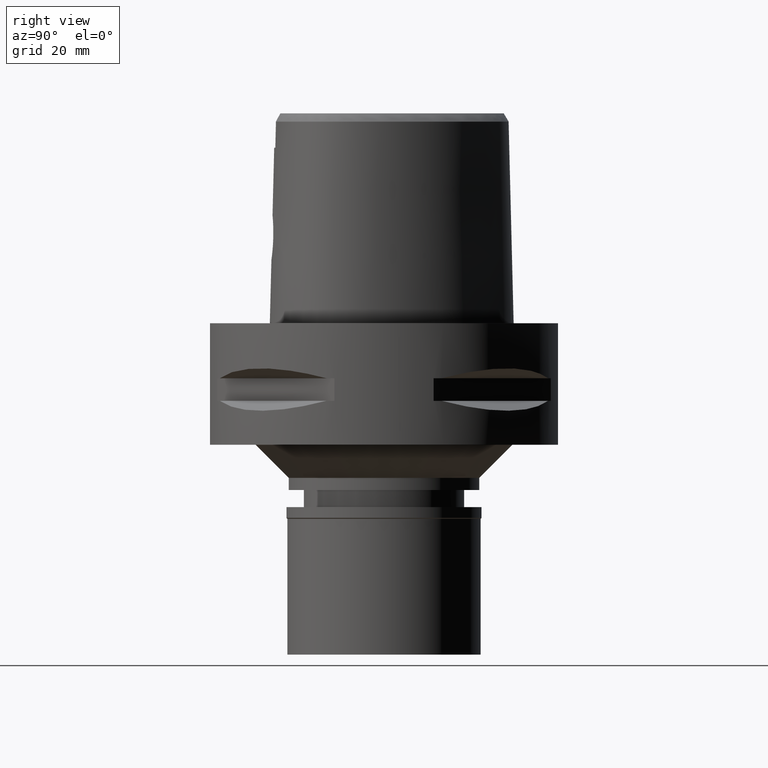
[diagram: clean part render]
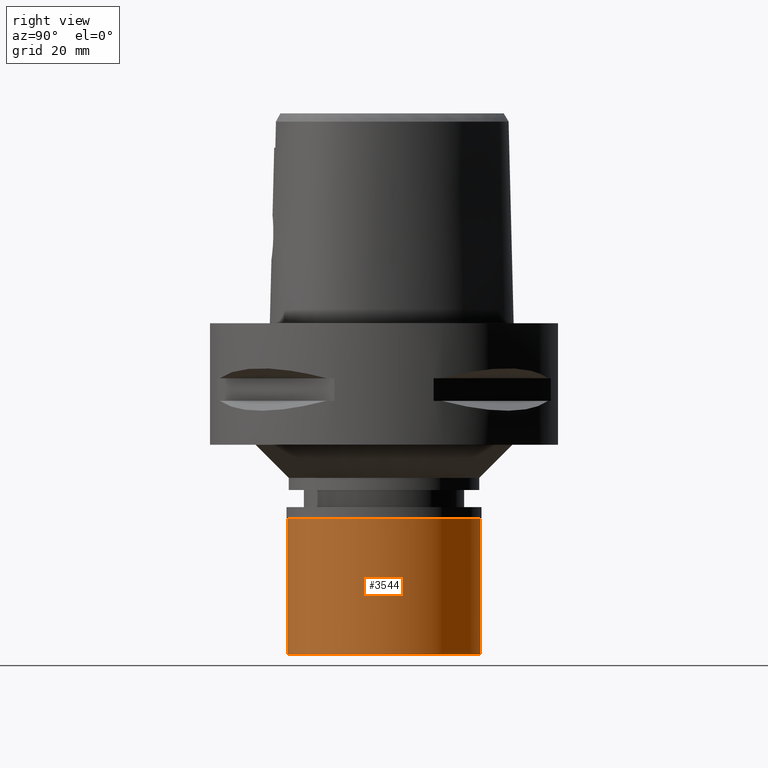
[diagram: same view with one face highlighted and labeled with its STEP entity id]
A machine part, right view. The second image highlights one B-rep face of the part: STEP entity #3544.
In plain terms, the highlighted cylindrical surface (partial cylindrical patch) has radius 17.5 mm, axis along (0, 0, -1).
Its self-contained STEP definition (entity closure, byte-faithful):
#120 = CARTESIAN_POINT ( 'NONE',  ( 0.0000000000000000000, 17.50000000000000000, -2.100000000000000089 ) ) ;
#620 = CYLINDRICAL_SURFACE ( 'NONE', #3107, 17.50000000000000000 ) ;
#630 = DIRECTION ( 'NONE',  ( 0.0000000000000000000, -1.000000000000000000, 0.0000000000000000000 ) ) ;
#763 = CARTESIAN_POINT ( 'NONE',  ( 0.0000000000000000000, 17.50000000000000000, -26.70000000000000284 ) ) ;
#1089 = DIRECTION ( 'NONE',  ( 0.0000000000000000000, 1.000000000000000000, 0.0000000000000000000 ) ) ;
#1139 = ORIENTED_EDGE ( 'NONE', *, *, #2870, .T. ) ;
#1610 = EDGE_LOOP ( 'NONE', ( #3755, #3719, #1139, #2285 ) ) ;
#1646 = AXIS2_PLACEMENT_3D ( 'NONE', #3937, #4378, #1089 ) ;
#1651 = VERTEX_POINT ( 'NONE', #4441 ) ;
#1772 = LINE ( 'NONE', #2863, #3872 ) ;
#2077 = DIRECTION ( 'NONE',  ( 0.0000000000000000000, 0.0000000000000000000, -1.000000000000000000 ) ) ;
#2221 = DIRECTION ( 'NONE',  ( 0.0000000000000000000, 0.0000000000000000000, -1.000000000000000000 ) ) ;
#2285 = ORIENTED_EDGE ( 'NONE', *, *, #4233, .F. ) ;
#2333 = CARTESIAN_POINT ( 'NONE',  ( 0.0000000000000000000, -17.50000000000000000, -2.100000000000000089 ) ) ;
#2541 = EDGE_CURVE ( 'NONE', #3635, #1651, #1772, .T. ) ;
#2598 = LINE ( 'NONE', #120, #3955 ) ;
#2751 = CARTESIAN_POINT ( 'NONE',  ( 0.0000000000000000000, 0.0000000000000000000, -26.70000000000000284 ) ) ;
#2863 = CARTESIAN_POINT ( 'NONE',  ( 0.0000000000000000000, -17.50000000000000000, -2.100000000000000089 ) ) ;
#2870 = EDGE_CURVE ( 'NONE', #1651, #4619, #4016, .T. ) ;
#3107 = AXIS2_PLACEMENT_3D ( 'NONE', #3186, #2077, #4654 ) ;
#3182 = AXIS2_PLACEMENT_3D ( 'NONE', #2751, #3868, #630 ) ;
#3186 = CARTESIAN_POINT ( 'NONE',  ( 0.0000000000000000000, 0.0000000000000000000, 0.0000000000000000000 ) ) ;
#3283 = EDGE_CURVE ( 'NONE', #3294, #3635, #3491, .T. ) ;
#3294 = VERTEX_POINT ( 'NONE', #4361 ) ;
#3491 = CIRCLE ( 'NONE', #1646, 17.50000000000000000 ) ;
#3544 = ADVANCED_FACE ( 'NONE', ( #3909 ), #620, .T. ) ;
#3590 = DIRECTION ( 'NONE',  ( 0.0000000000000000000, 0.0000000000000000000, -1.000000000000000000 ) ) ;
#3635 = VERTEX_POINT ( 'NONE', #2333 ) ;
#3719 = ORIENTED_EDGE ( 'NONE', *, *, #2541, .T. ) ;
#3755 = ORIENTED_EDGE ( 'NONE', *, *, #3283, .T. ) ;
#3868 = DIRECTION ( 'NONE',  ( 0.0000000000000000000, 0.0000000000000000000, 1.000000000000000000 ) ) ;
#3872 = VECTOR ( 'NONE', #3590, 1000.000000000000000 ) ;
#3909 = FACE_OUTER_BOUND ( 'NONE', #1610, .T. ) ;
#3937 = CARTESIAN_POINT ( 'NONE',  ( 0.0000000000000000000, 0.0000000000000000000, -2.100000000000000089 ) ) ;
#3955 = VECTOR ( 'NONE', #2221, 1000.000000000000000 ) ;
#4016 = CIRCLE ( 'NONE', #3182, 17.50000000000000000 ) ;
#4233 = EDGE_CURVE ( 'NONE', #3294, #4619, #2598, .T. ) ;
#4361 = CARTESIAN_POINT ( 'NONE',  ( 0.0000000000000000000, 17.50000000000000000, -2.100000000000000089 ) ) ;
#4378 = DIRECTION ( 'NONE',  ( 0.0000000000000000000, 0.0000000000000000000, -1.000000000000000000 ) ) ;
#4441 = CARTESIAN_POINT ( 'NONE',  ( 0.0000000000000000000, -17.50000000000000000, -26.70000000000000284 ) ) ;
#4619 = VERTEX_POINT ( 'NONE', #763 ) ;
#4654 = DIRECTION ( 'NONE',  ( 0.0000000000000000000, -1.000000000000000000, 0.0000000000000000000 ) ) ;